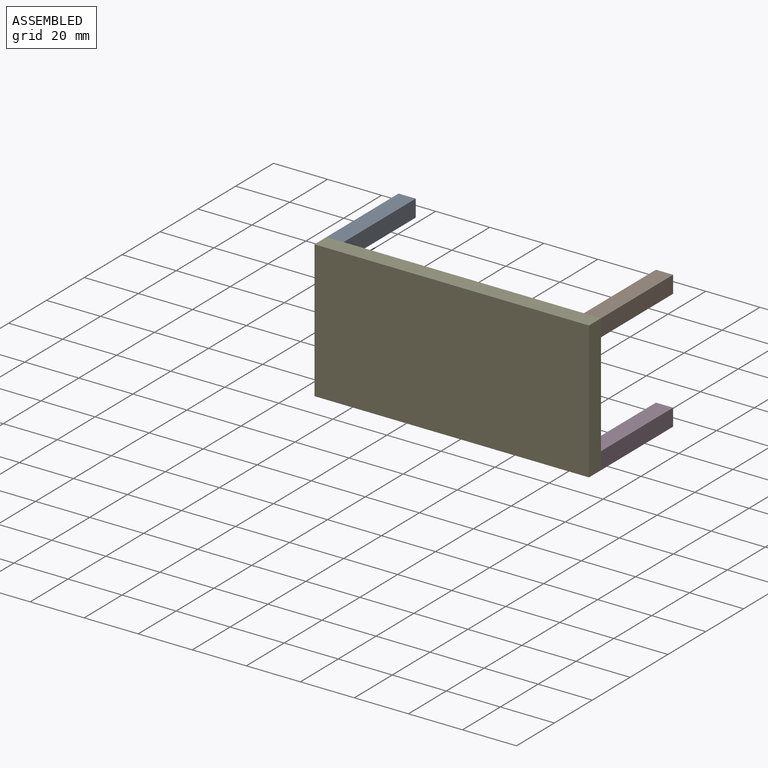
[diagram: assembled view]
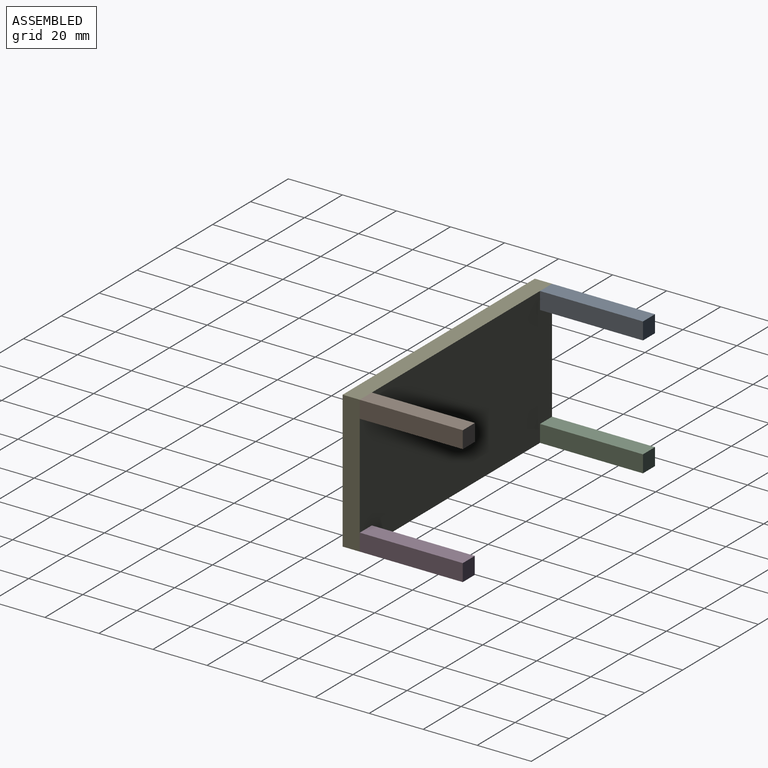
[diagram: assembled view, second angle]
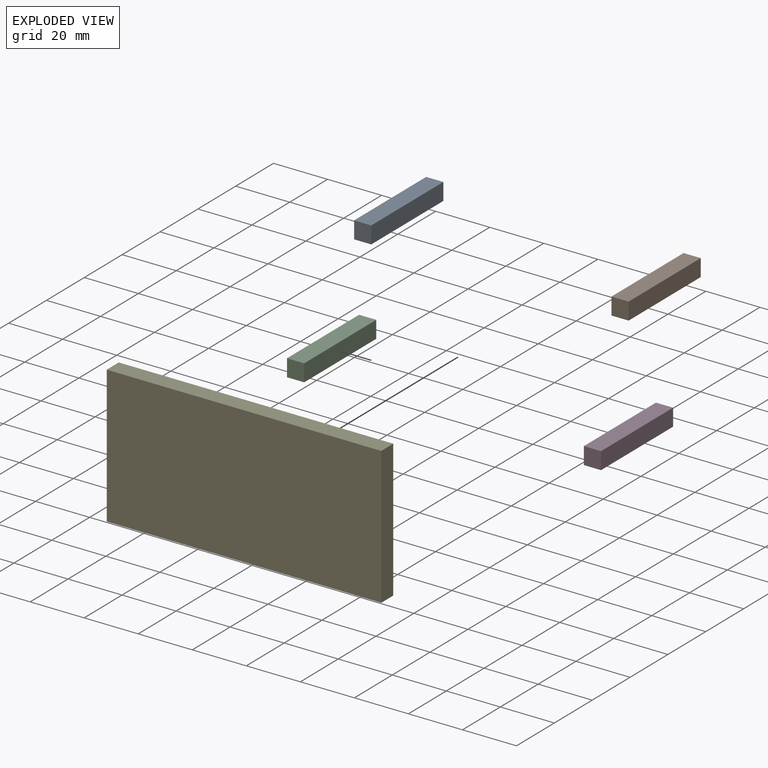
[diagram: exploded view]
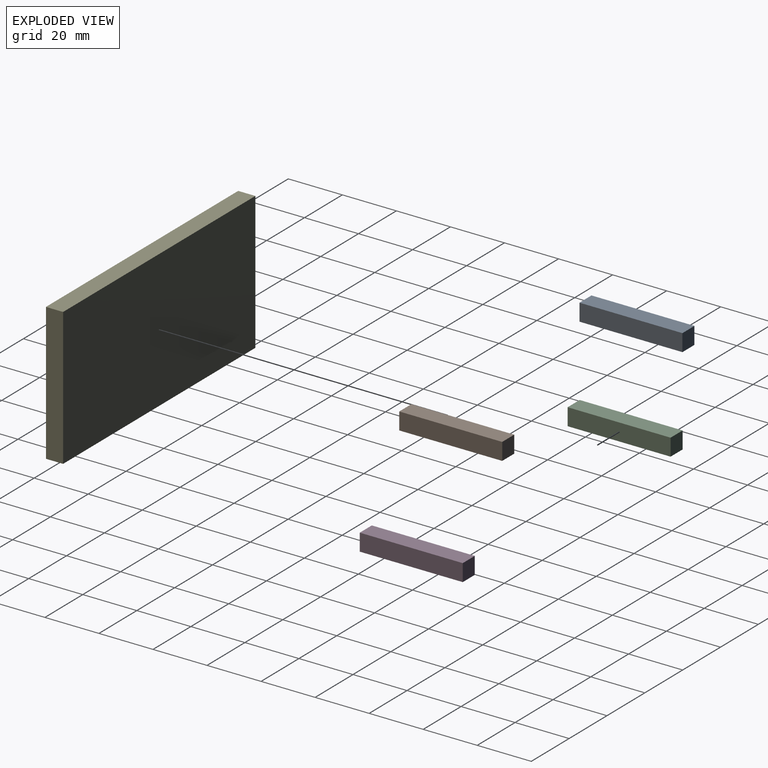
[diagram: exploded view, second angle]
ASSEMBLY  parts=5 mates=3
PART A: 6 faces, bbox 6.4x6.4x38.1 mm
  f0: plane 38.1x6.35mm, normal (1,0,0), area 241.9mm2, adj f1,f3,f4,f5
  f1: plane 6.35x6.35mm, normal (0,0,1), area 40.3mm2, adj f0,f2,f4,f5
  f2: plane 38.1x6.35mm, normal (-1,0,0), area 241.9mm2, adj f1,f3,f4,f5
  f3: plane 6.35x6.35mm, normal (0,0,-1), area 40.3mm2, adj f0,f2,f4,f5
  f4: plane 38.1x6.35mm, normal (0,-1,0), area 241.9mm2, adj f0,f1,f2,f3
  f5: plane 38.1x6.35mm, normal (0,1,0), area 241.9mm2, adj f0,f1,f2,f3
PART B: same geometry as A
PART C: same geometry as A
PART D: same geometry as A
PART E: 6 faces, bbox 101.6x6.4x50.8 mm
  f0: plane 50.8x6.35mm, normal (1,0,0), area 322.6mm2, adj f1,f3,f4,f5
  f1: plane 101.6x6.35mm, normal (0,0,1), area 645.2mm2, adj f0,f2,f4,f5
  f2: plane 50.8x6.35mm, normal (-1,0,0), area 322.6mm2, adj f1,f3,f4,f5
  f3: plane 101.6x6.35mm, normal (0,0,-1), area 645.2mm2, adj f0,f2,f4,f5
  f4: plane 101.6x50.8mm, normal (0,-1,0), area 5161.3mm2, adj f0,f1,f2,f3
  f5: plane 101.6x50.8mm, normal (0,1,0), area 5161.3mm2, adj f0,f1,f2,f3
PLACE A rot(axis=(-1,0,0),90deg) t=(-34.86,17.73,36.59)mm
PLACE B rot(axis=(-1,0,0),90deg) t=(60.39,17.73,36.59)mm
PLACE C rot(axis=(-1,0,0),90deg) t=(-34.86,17.73,-7.86)mm
PLACE D rot(axis=(-1,0,0),90deg) t=(60.39,17.73,-7.86)mm
PLACE E t=(-40.6,-6.58,25.88)mm
MATE planar A.f3 <-> E.f5  axis (0,1,0) through (-91.76,-6.58,42.94)mm
MATE planar B.f3 <-> E.f5  axis (0,1,0) through (9.84,-6.58,42.94)mm
MATE planar D.f3 <-> E.f5  axis (0,1,0) through (9.84,-6.58,-7.86)mm
